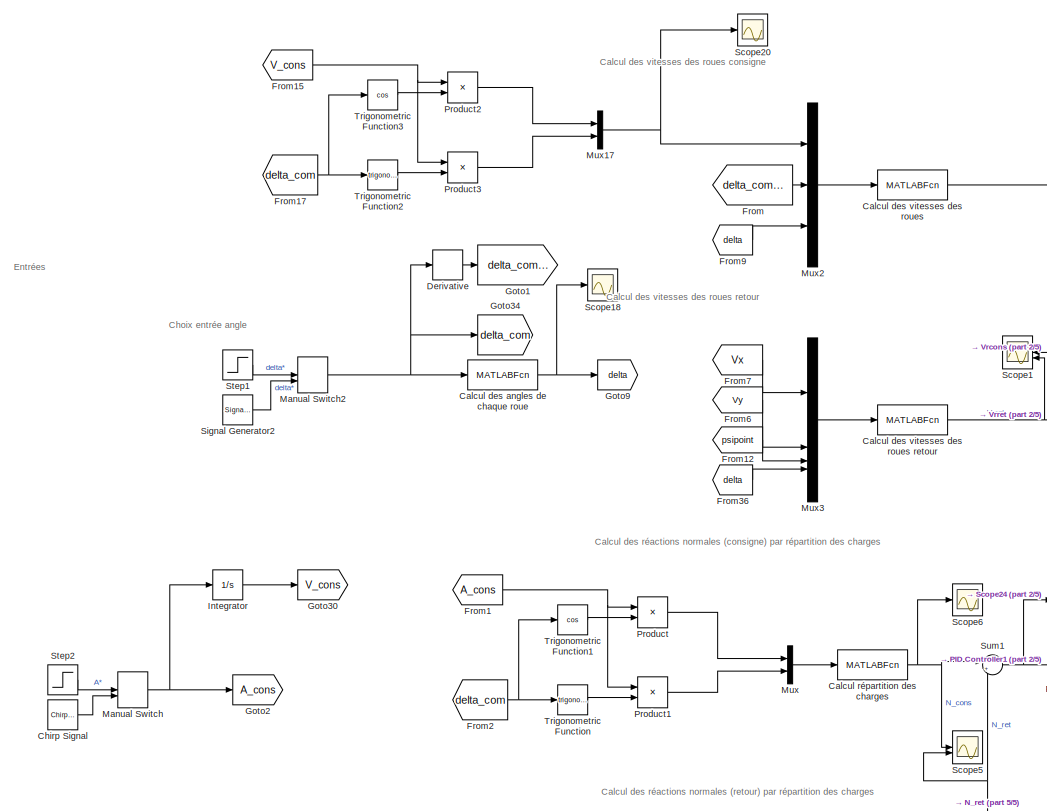
[diagram: root canvas - part 1/5, top left region]
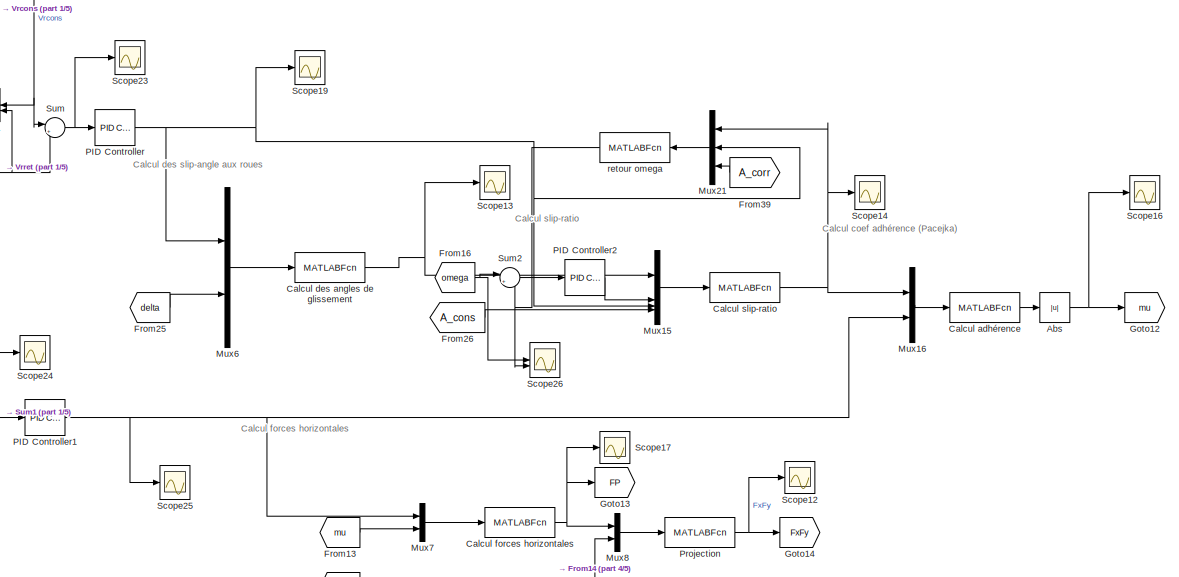
[diagram: root canvas - part 2/5, central region]
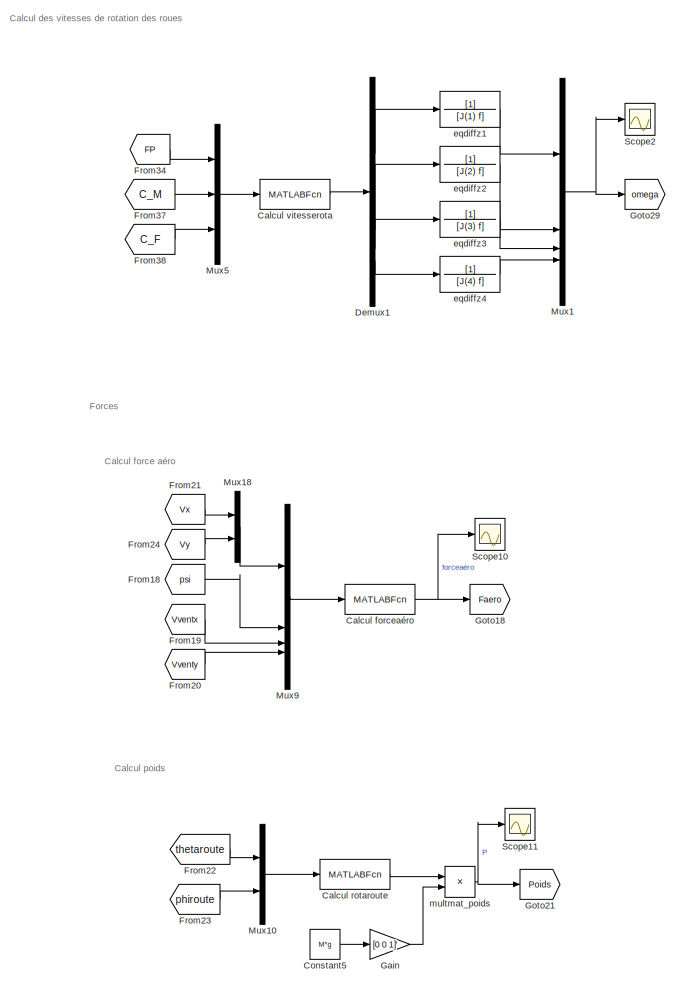
[diagram: root canvas - part 3/5, middle right region]
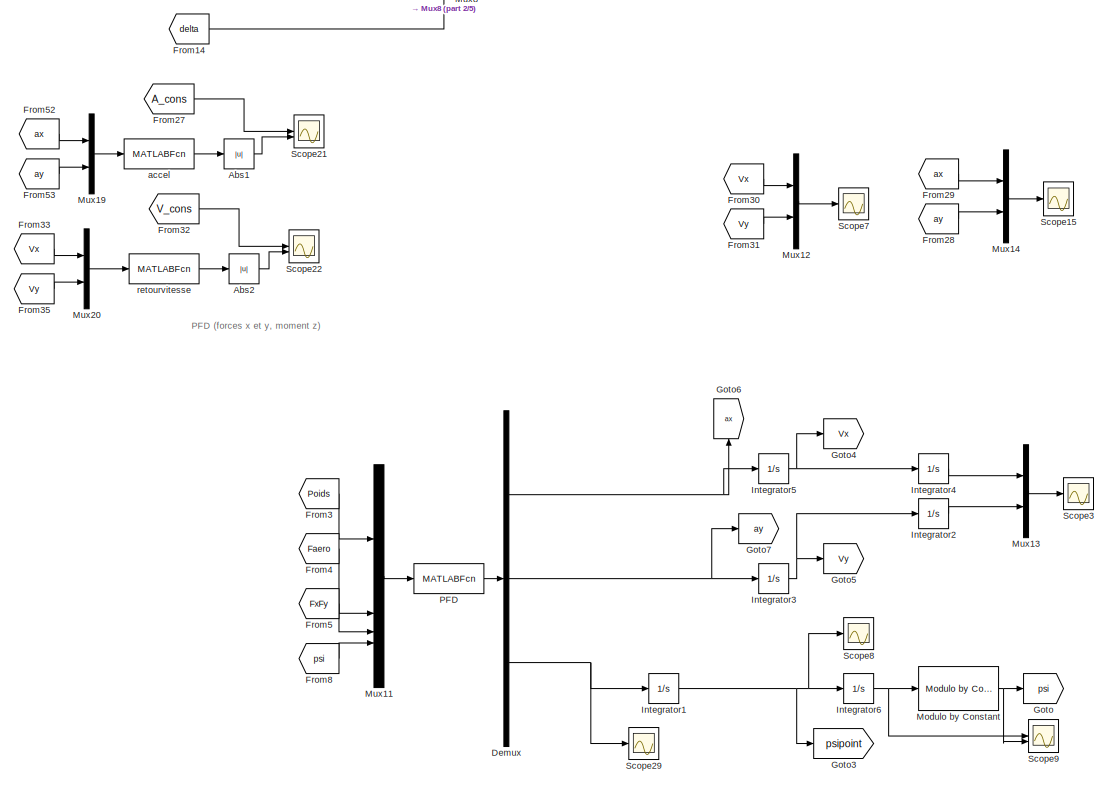
[diagram: root canvas - part 4/5, bottom center region]
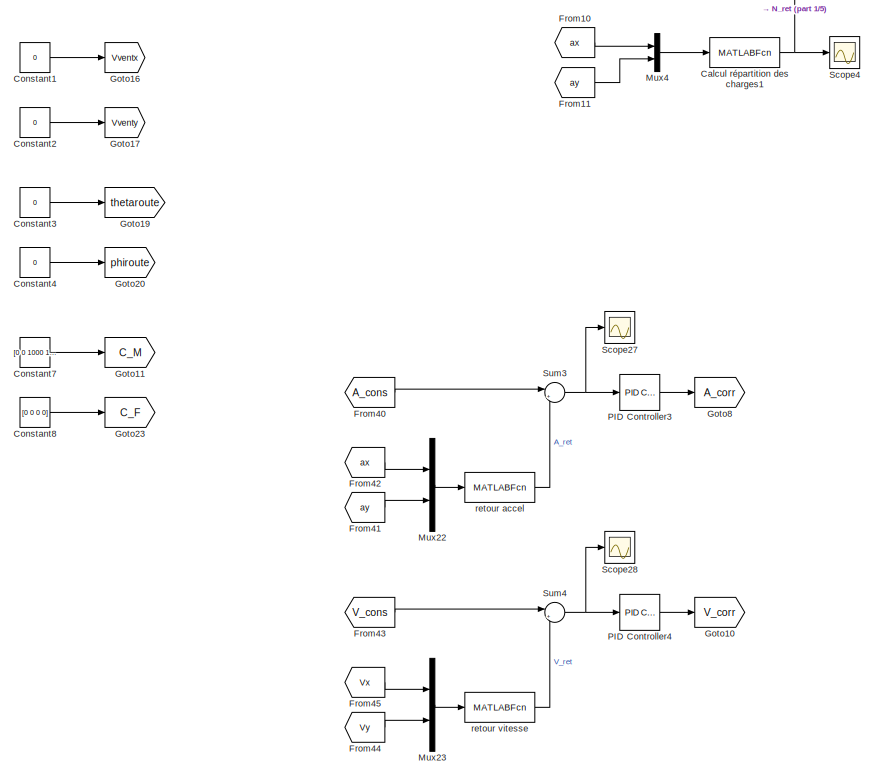
[diagram: root canvas - part 5/5, bottom left region]
MODEL slx_dfa112f104d4
KIND model
CONFIG AbsTol = auto
CONFIG EnableMultiTasking = off
CONFIG FixedStep = auto
CONFIG MaxStep = auto
CONFIG MinStep = auto
CONFIG RelTol = 1e-6
CONFIG SampleTimeConstraint = Unconstrained
CONFIG SolverName = VariableStepAuto
CONFIG StartTime = 0.0
CONFIG StopTime = 120
BLOCK [Abs] Abs
  Commented = through
  SaturateOnIntegerOverflow = off
BLOCK [Abs] Abs1
  SaturateOnIntegerOverflow = off
BLOCK [Abs] Abs2
  SaturateOnIntegerOverflow = off
BLOCK [MATLABFcn] Calcul adhérence
  MATLABFcn = calcul_adherence(u(1),u(2),u(3),u(4),u(5),u(6),u(7),u(8),Cte_1,Cte_2,Cte_3,Cte_4,u(9),u(10),u(11),u(12))
  OutputDimensions = 4*2
BLOCK [MATLABFcn] Calcul des angles de chaque roue
  MATLABFcn = calcul_delta(u,L,d_f)
  OutputDimensions = 4
BLOCK [MATLABFcn] Calcul des angles de glissement
  MATLABFcn = calcul_slipangle(u(1),u(2),u(3),u(4),u(5),u(6),u(7),u(8),u(9),u(10),u(11),u(12))
  OutputDimensions = 4
BLOCK [MATLABFcn] Calcul des vitesses des roues
  MATLABFcn = calcul_vitessesroues(u(1),u(2),u(3),u(4),u(5),u(6),u(7),d_f,d_r,l_f,l_r)
  OutputDimensions = 8
BLOCK [MATLABFcn] Calcul des vitesses des roues retour
  MATLABFcn = calcul_vitessesroues(u(1),u(2),u(3),u(4),u(5),u(6),u(7),d_f,d_r,l_f,l_r)
  OutputDimensions = 8
BLOCK [MATLABFcn] Calcul forceaéro
  MATLABFcn = calcul_forceaero(u(1),u(2),u(3),u(4),u(5),C_x,A_L,A_S,rho)
  OutputDimensions = 2
BLOCK [MATLABFcn] Calcul forces horizontales
  MATLABFcn = calcul_forces(u(1),u(2),u(3),u(4),u(5),u(6),u(7),u(8),u(9),u(10),u(11),u(12))
  OutputDimensions = 4*2
BLOCK [MATLABFcn] Calcul rotaroute
  MATLABFcn = calcul_rotaroute(u(1),u(2))
  Output1D = off
  OutputDimensions = [3 3]
BLOCK [MATLABFcn] Calcul répartition des charges
  MATLABFcn = calcul_N(u(1),u(2),M,L,l_r,h,g)
  OutputDimensions = 4
BLOCK [MATLABFcn] Calcul répartition des charges1
  MATLABFcn = calcul_N(u(1),u(2),M,L,l_r,h,g)
  OutputDimensions = 4
BLOCK [MATLABFcn] Calcul slip-ratio
  MATLABFcn = calcul_lambda(u(1),u(2),u(3),u(4),R(1),R(2),R(3),R(4),u(5),u(6),u(7),u(8),u(9),u(11),u(13),u(15),u(17))
  OutputDimensions = 4*2
BLOCK [MATLABFcn] Calcul vitesserota
  MATLABFcn = calcul_omega(u(1),u(2),u(3),u(4),u(5),u(6),u(7),u(8),u(9),u(10),u(11),u(12),u(13),u(14),u(15),u(16),R(1),R(2),R(3),R(4),J(1),J(2),J(3),J(4))
  OutputDimensions = 4
BLOCK [Reference] Chirp Signal  REF=simulink/Sources/Chirp Signal
  SourceBlock = simulink/Sources/Chirp Signal
  SourceType = chirp
BLOCK [Constant] Constant1
  Value = 0
BLOCK [Constant] Constant2
  Value = 0
BLOCK [Constant] Constant3
  Value = 0
BLOCK [Constant] Constant4
  Value = 0
BLOCK [Constant] Constant5
  Value = M*g
  VectorParams1D = off
BLOCK [Constant] Constant7
  Value = [0 0 1000 1000]
BLOCK [Constant] Constant8
  Value = [0 0 0 0]
BLOCK [Demux] Demux
  Outputs = 3
BLOCK [Demux] Demux1
BLOCK [Derivative] Derivative
BLOCK [From] From
  GotoTag = delta_compoint
BLOCK [From] From1
  GotoTag = A_cons
BLOCK [From] From10
  GotoTag = ax
BLOCK [From] From11
  GotoTag = ay
BLOCK [From] From12
  GotoTag = psipoint
BLOCK [From] From13
  GotoTag = mu
BLOCK [From] From14
  GotoTag = delta
BLOCK [From] From15
  GotoTag = V_cons
BLOCK [From] From16
  GotoTag = omega
BLOCK [From] From17
  GotoTag = delta_com
BLOCK [From] From18
  GotoTag = psi
BLOCK [From] From19
  GotoTag = Vventx
BLOCK [From] From2
  GotoTag = delta_com
BLOCK [From] From20
  GotoTag = Vventy
BLOCK [From] From21
  GotoTag = Vx
BLOCK [From] From22
  GotoTag = thetaroute
BLOCK [From] From23
  GotoTag = phiroute
BLOCK [From] From24
  GotoTag = Vy
BLOCK [From] From25
  GotoTag = delta
BLOCK [From] From26
  GotoTag = A_cons
BLOCK [From] From27
  GotoTag = A_cons
BLOCK [From] From28
  GotoTag = ay
BLOCK [From] From29
  GotoTag = ax
BLOCK [From] From3
  GotoTag = Poids
BLOCK [From] From30
  GotoTag = Vx
BLOCK [From] From31
  GotoTag = Vy
BLOCK [From] From32
  GotoTag = V_cons
BLOCK [From] From33
  GotoTag = Vx
BLOCK [From] From34
  GotoTag = FP
BLOCK [From] From35
  GotoTag = Vy
BLOCK [From] From36
  GotoTag = delta
BLOCK [From] From37
  GotoTag = C_M
BLOCK [From] From38
  GotoTag = C_F
BLOCK [From] From39
  Commented = on
  GotoTag = A_corr
  NameLocation = top
BLOCK [From] From4
  GotoTag = Faero
BLOCK [From] From40
  GotoTag = A_cons
BLOCK [From] From41
  GotoTag = ay
BLOCK [From] From42
  GotoTag = ax
BLOCK [From] From43
  GotoTag = V_cons
BLOCK [From] From44
  GotoTag = Vy
BLOCK [From] From45
  GotoTag = Vx
BLOCK [From] From5
  GotoTag = FxFy
BLOCK [From] From52
  GotoTag = ax
BLOCK [From] From53
  GotoTag = ay
BLOCK [From] From6
  GotoTag = Vy
BLOCK [From] From7
  GotoTag = Vx
BLOCK [From] From8
  GotoTag = psi
BLOCK [From] From9
  GotoTag = delta
BLOCK [Gain] Gain
  Gain = [0 0 1]'
BLOCK [Goto] Goto
  GotoTag = psi
BLOCK [Goto] Goto1
  GotoTag = delta_compoint
BLOCK [Goto] Goto10
  GotoTag = V_corr
BLOCK [Goto] Goto11
  GotoTag = C_M
BLOCK [Goto] Goto12
  GotoTag = mu
BLOCK [Goto] Goto13
  GotoTag = FP
BLOCK [Goto] Goto14
  GotoTag = FxFy
BLOCK [Goto] Goto16
  GotoTag = Vventx
BLOCK [Goto] Goto17
  GotoTag = Vventy
BLOCK [Goto] Goto18
  GotoTag = Faero
BLOCK [Goto] Goto19
  GotoTag = thetaroute
BLOCK [Goto] Goto2
  GotoTag = A_cons
BLOCK [Goto] Goto20
  GotoTag = phiroute
BLOCK [Goto] Goto21
  GotoTag = Poids
BLOCK [Goto] Goto23
  GotoTag = C_F
BLOCK [Goto] Goto29
  GotoTag = omega
BLOCK [Goto] Goto3
  GotoTag = psipoint
BLOCK [Goto] Goto30
  GotoTag = V_cons
BLOCK [Goto] Goto34
  GotoTag = delta_com
BLOCK [Goto] Goto4
  GotoTag = Vx
  NameLocation = top
BLOCK [Goto] Goto5
  GotoTag = Vy
  NameLocation = top
BLOCK [Goto] Goto6
  GotoTag = ax
  NameLocation = right
BLOCK [Goto] Goto7
  GotoTag = ay
BLOCK [Goto] Goto8
  GotoTag = A_corr
BLOCK [Goto] Goto9
  GotoTag = delta
BLOCK [Integrator] Integrator
BLOCK [Integrator] Integrator1
BLOCK [Integrator] Integrator2
BLOCK [Integrator] Integrator3
BLOCK [Integrator] Integrator4
BLOCK [Integrator] Integrator5
BLOCK [Integrator] Integrator6
BLOCK [ManualSwitch] Manual Switch
BLOCK [ManualSwitch] Manual Switch2
BLOCK [Reference] Modulo by Constant  REF=embmathops/Modulo by Constant
  LibrarySourceBlock = embeddedMathLib/Modulo by Constant
  SourceBlock = embmathops/Modulo by Constant
  SourceType = fixed.system.ModByConstant
BLOCK [Mux] Mux
  DisplayOption = bar
  Inputs = 2
BLOCK [Mux] Mux1
  DisplayOption = bar
BLOCK [Mux] Mux10
  DisplayOption = bar
  Inputs = 2
BLOCK [Mux] Mux11
  DisplayOption = bar
BLOCK [Mux] Mux12
  DisplayOption = bar
  Inputs = 2
BLOCK [Mux] Mux13
  DisplayOption = bar
  Inputs = 2
BLOCK [Mux] Mux14
  DisplayOption = bar
  Inputs = 2
BLOCK [Mux] Mux15
  DisplayOption = bar
BLOCK [Mux] Mux16
  DisplayOption = bar
  Inputs = 2
BLOCK [Mux] Mux17
  DisplayOption = bar
  Inputs = 2
BLOCK [Mux] Mux18
  DisplayOption = bar
  Inputs = 2
BLOCK [Mux] Mux19
  DisplayOption = bar
  Inputs = 2
BLOCK [Mux] Mux2
  DisplayOption = bar
  Inputs = 3
BLOCK [Mux] Mux20
  DisplayOption = bar
  Inputs = 2
BLOCK [Mux] Mux21
  Commented = on
  DisplayOption = bar
  Inputs = 3
  NameLocation = top
BLOCK [Mux] Mux22
  DisplayOption = bar
  Inputs = 2
BLOCK [Mux] Mux23
  DisplayOption = bar
  Inputs = 2
BLOCK [Mux] Mux3
  DisplayOption = bar
BLOCK [Mux] Mux4
  DisplayOption = bar
  Inputs = 2
BLOCK [Mux] Mux5
  DisplayOption = bar
  Inputs = 3
BLOCK [Mux] Mux6
  DisplayOption = bar
  Inputs = 2
BLOCK [Mux] Mux7
  DisplayOption = bar
  Inputs = 2
BLOCK [Mux] Mux8
  DisplayOption = bar
  Inputs = 2
BLOCK [Mux] Mux9
  DisplayOption = bar
BLOCK [MATLABFcn] PFD
  MATLABFcn = eqpfd(u(1),u(2),u(4),u(5),u(6),u(7),u(8),u(9),u(10),u(11),u(12),u(13),u(14),d_f,d_r,l_f,l_r,M,Iz)
  OutputDimensions = 3
BLOCK [Reference] PID Controller  REF=slpidlib/PID Controller
  LibrarySourceBlock = simulink/Continuous/PID Controller
  SourceBlock = slpidlib/PID Controller
  SourceType = PID 1dof
BLOCK [Reference] PID Controller1  REF=slpidlib/PID Controller
  LibrarySourceBlock = simulink/Continuous/PID Controller
  SourceBlock = slpidlib/PID Controller
  SourceType = PID 1dof
BLOCK [Reference] PID Controller2  REF=slpidlib/PID Controller
  Commented = through
  LibrarySourceBlock = simulink/Continuous/PID Controller
  SourceBlock = slpidlib/PID Controller
  SourceType = PID 1dof
BLOCK [Reference] PID Controller3  REF=slpidlib/PID Controller
  LibrarySourceBlock = simulink/Continuous/PID Controller
  SourceBlock = slpidlib/PID Controller
  SourceType = PID 1dof
BLOCK [Reference] PID Controller4  REF=slpidlib/PID Controller
  LibrarySourceBlock = simulink/Continuous/PID Controller
  SourceBlock = slpidlib/PID Controller
  SourceType = PID 1dof
BLOCK [Product] Product
BLOCK [Product] Product1
BLOCK [Product] Product2
BLOCK [Product] Product3
BLOCK [MATLABFcn] Projection
  MATLABFcn = projection(u(1),u(2),u(3),u(4),u(5),u(6),u(7),u(8),u(9),u(10),u(11),u(12))
  OutputDimensions = 8
BLOCK [Scope] Scope1
  Floating = off
  NameLocation = top
  NumInputPorts = 2
  ScopeSpecificationString = Simulink.scopes.TimeScopeBlockCfg('CurrentConfiguration', extmgr.ConfigurationSet(extmgr.Configuration('Core','General UI',true),extmgr.Configuration('Core','Source UI',true),extmgr.Configuration('Sources','WiredSimulink',true,'DataLoggingVariableName','ScopeData3'),extmgr.Configuration('Visuals','Time Domain',true,'SerializedDisplays',{struct('MinYLimReal','-69.83766','MaxYLimReal','141.08432','Y...<+2070ch>
BLOCK [Scope] Scope10
  Floating = off
  NumInputPorts = 1
  ScopeSpecificationString = Simulink.scopes.TimeScopeBlockCfg('CurrentConfiguration', extmgr.ConfigurationSet(extmgr.Configuration('Core','General UI',true),extmgr.Configuration('Core','Source UI',true),extmgr.Configuration('Sources','WiredSimulink',true,'DataLoggingVariableName','ScopeData11'),extmgr.Configuration('Visuals','Time Domain',true,'SerializedDisplays',{struct('MinYLimReal','-0.00171','MaxYLimReal','0.00019','YLa...<+1613ch>
BLOCK [Scope] Scope11
  Floating = off
  NumInputPorts = 1
  ScopeSpecificationString = Simulink.scopes.TimeScopeBlockCfg('CurrentConfiguration', extmgr.ConfigurationSet(extmgr.Configuration('Core','General UI',true),extmgr.Configuration('Core','Source UI',true),extmgr.Configuration('Sources','WiredSimulink',true,'DataLoggingVariableName','ScopeData12'),extmgr.Configuration('Visuals','Time Domain',true,'SerializedDisplays',{struct('MinYLimReal','-490.5','MaxYLimReal','4414.5','YLabel...<+1601ch>
BLOCK [Scope] Scope12
  Floating = off
  NumInputPorts = 1
  ScopeSpecificationString = Simulink.scopes.TimeScopeBlockCfg('CurrentConfiguration', extmgr.ConfigurationSet(extmgr.Configuration('Core','General UI',true),extmgr.Configuration('Core','Source UI',true),extmgr.Configuration('Sources','WiredSimulink',true,'DataLoggingVariableName','ScopeData13'),extmgr.Configuration('Visuals','Time Domain',true,'SerializedDisplays',{struct('MinYLimReal','-134939.67535','MaxYLimReal','125406.9...<+1808ch>
BLOCK [Scope] Scope13
  Floating = off
  NumInputPorts = 1
  ScopeSpecificationString = Simulink.scopes.TimeScopeBlockCfg('CurrentConfiguration', extmgr.ConfigurationSet(extmgr.Configuration('Core','General UI',true),extmgr.Configuration('Core','Source UI',true),extmgr.Configuration('Sources','WiredSimulink',true,'DataLoggingVariableName','ScopeData14'),extmgr.Configuration('Visuals','Time Domain',true,'SerializedDisplays',{struct('MinYLimReal','-2.43807','MaxYLimReal','2.3304','YLab...<+1750ch>
BLOCK [Scope] Scope14
  Floating = off
  NumInputPorts = 1
  ScopeSpecificationString = Simulink.scopes.TimeScopeBlockCfg('CurrentConfiguration', extmgr.ConfigurationSet(extmgr.Configuration('Core','General UI',true),extmgr.Configuration('Core','Source UI',true),extmgr.Configuration('Sources','WiredSimulink',true,'DataLoggingVariableName','ScopeData16'),extmgr.Configuration('Visuals','Time Domain',true,'SerializedDisplays',{struct('MinYLimReal','-3.68113','MaxYLimReal','2.95958','YLa...<+1880ch>
BLOCK [Scope] Scope15
  Floating = off
  NumInputPorts = 1
  ScopeSpecificationString = Simulink.scopes.TimeScopeBlockCfg('CurrentConfiguration', extmgr.ConfigurationSet(extmgr.Configuration('Core','General UI',true),extmgr.Configuration('Core','Source UI',true),extmgr.Configuration('Sources','WiredSimulink',true,'DataLoggingVariableName','ScopeData4'),extmgr.Configuration('Visuals','Time Domain',true,'SerializedDisplays',{struct('MinYLimReal','-1.32103','MaxYLimReal','1.37016','YLab...<+1629ch>
BLOCK [Scope] Scope16
  Floating = off
  NumInputPorts = 1
  ScopeSpecificationString = Simulink.scopes.TimeScopeBlockCfg('CurrentConfiguration', extmgr.ConfigurationSet(extmgr.Configuration('Core','General UI',true),extmgr.Configuration('Core','Source UI',true),extmgr.Configuration('Sources','WiredSimulink',true,'DataLoggingVariableName','ScopeData17'),extmgr.Configuration('Visuals','Time Domain',true,'SerializedDisplays',{struct('MinYLimReal','-0.125','MaxYLimReal','1.125','YLabelR...<+1725ch>
BLOCK [Scope] Scope17
  Floating = off
  NumInputPorts = 1
  ScopeSpecificationString = Simulink.scopes.TimeScopeBlockCfg('CurrentConfiguration', extmgr.ConfigurationSet(extmgr.Configuration('Core','General UI',true),extmgr.Configuration('Core','Source UI',true),extmgr.Configuration('Sources','WiredSimulink',true,'DataLoggingVariableName','ScopeData15'),extmgr.Configuration('Visuals','Time Domain',true,'SerializedDisplays',{struct('MinYLimReal','-1618.16348','MaxYLimReal','1754.87954...<+1995ch>
BLOCK [Scope] Scope18
  Floating = off
  NumInputPorts = 1
  ScopeSpecificationString = Simulink.scopes.TimeScopeBlockCfg('CurrentConfiguration', extmgr.ConfigurationSet(extmgr.Configuration('Core','General UI',true),extmgr.Configuration('Core','Source UI',true),extmgr.Configuration('Sources','WiredSimulink',true,'DataLoggingVariableName','ScopeData1'),extmgr.Configuration('Visuals','Time Domain',true,'SerializedDisplays',{struct('MinYLimReal','-1.00000','MaxYLimReal','1.00000','YLab...<+1728ch>
BLOCK [Scope] Scope19
  Floating = off
  NumInputPorts = 1
  ScopeSpecificationString = Simulink.scopes.TimeScopeBlockCfg('CurrentConfiguration', extmgr.ConfigurationSet(extmgr.Configuration('Core','General UI',true),extmgr.Configuration('Core','Source UI',true),extmgr.Configuration('Sources','WiredSimulink',true,'DataLoggingVariableName','ScopeData18'),extmgr.Configuration('Visuals','Time Domain',true,'SerializedDisplays',{struct('MinYLimReal','-410330.41857','MaxYLimReal','541584.8...<+1890ch>
BLOCK [Scope] Scope2
  Floating = off
  NumInputPorts = 1
  ScopeSpecificationString = Simulink.scopes.TimeScopeBlockCfg('CurrentConfiguration', extmgr.ConfigurationSet(extmgr.Configuration('Core','General UI',true),extmgr.Configuration('Core','Source UI',true),extmgr.Configuration('Sources','WiredSimulink',true),extmgr.Configuration('Visuals','Time Domain',true,'SerializedDisplays',{struct('MinYLimReal','-8567.43819','MaxYLimReal','18535.72607','YLabelReal','','MinYLimMag','  0.000...<+1638ch>
BLOCK [Scope] Scope20
  Floating = off
  NumInputPorts = 1
  ScopeSpecificationString = Simulink.scopes.TimeScopeBlockCfg('CurrentConfiguration', extmgr.ConfigurationSet(extmgr.Configuration('Core','General UI',true),extmgr.Configuration('Core','Source UI',true),extmgr.Configuration('Sources','WiredSimulink',true,'DataLoggingVariableName','ScopeData19'),extmgr.Configuration('Visuals','Time Domain',true,'SerializedDisplays',{struct('MinYLimReal','-7.49928','MaxYLimReal','67.49352','YL...<+1607ch>
BLOCK [Scope] Scope21
  Floating = off
  NumInputPorts = 2
  ScopeSpecificationString = Simulink.scopes.TimeScopeBlockCfg('CurrentConfiguration', extmgr.ConfigurationSet(extmgr.Configuration('Core','General UI',true),extmgr.Configuration('Core','Source UI',true),extmgr.Configuration('Sources','WiredSimulink',true,'DataLoggingVariableName','ScopeData20'),extmgr.Configuration('Visuals','Time Domain',true,'SerializedDisplays',{struct('MinYLimReal','-0.45954','MaxYLimReal','4.13582','YLa...<+1631ch>
BLOCK [Scope] Scope22
  Floating = off
  NumInputPorts = 2
  ScopeSpecificationString = Simulink.scopes.TimeScopeBlockCfg('CurrentConfiguration', extmgr.ConfigurationSet(extmgr.Configuration('Core','General UI',true),extmgr.Configuration('Core','Source UI',true),extmgr.Configuration('Sources','WiredSimulink',true,'DataLoggingVariableName','ScopeData21'),extmgr.Configuration('Visuals','Time Domain',true,'SerializedDisplays',{struct('MinYLimReal','-96617.5233','MaxYLimReal','869557.709...<+1633ch>
BLOCK [Scope] Scope23
  Floating = off
  NumInputPorts = 1
  ScopeSpecificationString = Simulink.scopes.TimeScopeBlockCfg('CurrentConfiguration', extmgr.ConfigurationSet(extmgr.Configuration('Core','General UI',true),extmgr.Configuration('Core','Source UI',true),extmgr.Configuration('Sources','WiredSimulink',true,'DataLoggingVariableName','ScopeData22'),extmgr.Configuration('Visuals','Time Domain',true,'SerializedDisplays',{struct('MinYLimReal','-3769.39848','MaxYLimReal','4974.70283...<+1786ch>
BLOCK [Scope] Scope24
  Floating = off
  NumInputPorts = 1
  ScopeSpecificationString = Simulink.scopes.TimeScopeBlockCfg('CurrentConfiguration', extmgr.ConfigurationSet(extmgr.Configuration('Core','General UI',true),extmgr.Configuration('Core','Source UI',true),extmgr.Configuration('Sources','WiredSimulink',true,'DataLoggingVariableName','ScopeData23'),extmgr.Configuration('Visuals','Time Domain',true,'SerializedDisplays',{struct('MinYLimReal','-245.68275','MaxYLimReal','275.12221',...<+1723ch>
BLOCK [Scope] Scope25
  Floating = off
  NumInputPorts = 1
  ScopeSpecificationString = Simulink.scopes.TimeScopeBlockCfg('CurrentConfiguration', extmgr.ConfigurationSet(extmgr.Configuration('Core','General UI',true),extmgr.Configuration('Core','Source UI',true),extmgr.Configuration('Sources','WiredSimulink',true,'DataLoggingVariableName','ScopeData24'),extmgr.Configuration('Visuals','Time Domain',true,'SerializedDisplays',{struct('MinYLimReal','-2324.81377','MaxYLimReal','2349.77696...<+1802ch>
BLOCK [Scope] Scope26
  Floating = off
  NumInputPorts = 2
  ScopeSpecificationString = Simulink.scopes.TimeScopeBlockCfg('CurrentConfiguration', extmgr.ConfigurationSet(extmgr.Configuration('Core','General UI',true),extmgr.Configuration('Core','Source UI',true),extmgr.Configuration('Sources','WiredSimulink',true,'DataLoggingVariableName','ScopeData25'),extmgr.Configuration('Visuals','Time Domain',true,'SerializedDisplays',{struct('MinYLimReal','-7587.11734','MaxYLimReal','68284.0560...<+1786ch>
BLOCK [Scope] Scope27
  Floating = off
  NumInputPorts = 1
  ScopeSpecificationString = Simulink.scopes.TimeScopeBlockCfg('CurrentConfiguration', extmgr.ConfigurationSet(extmgr.Configuration('Core','General UI',true),extmgr.Configuration('Core','Source UI',true),extmgr.Configuration('Sources','WiredSimulink',true,'DataLoggingVariableName','ScopeData1'),extmgr.Configuration('Visuals','Time Domain',true,'SerializedDisplays',{struct('MinYLimReal','-3.13584','MaxYLimReal','1.45954','YLab...<+1614ch>
BLOCK [Scope] Scope28
  Floating = off
  NumInputPorts = 1
  ScopeSpecificationString = Simulink.scopes.TimeScopeBlockCfg('CurrentConfiguration', extmgr.ConfigurationSet(extmgr.Configuration('Core','General UI',true),extmgr.Configuration('Core','Source UI',true),extmgr.Configuration('Sources','WiredSimulink',true,'DataLoggingVariableName','ScopeData2'),extmgr.Configuration('Visuals','Time Domain',true,'SerializedDisplays',{struct('MinYLimReal','-3.10236','MaxYLimReal','14.13692','YLa...<+1618ch>
BLOCK [Scope] Scope29
  Floating = off
  NumInputPorts = 1
  ScopeSpecificationString = Simulink.scopes.TimeScopeBlockCfg('CurrentConfiguration', extmgr.ConfigurationSet(extmgr.Configuration('Core','General UI',true),extmgr.Configuration('Core','Source UI',true),extmgr.Configuration('Sources','WiredSimulink',true,'DataLoggingVariableName','ScopeData1'),extmgr.Configuration('Visuals','Time Domain',true,'SerializedDisplays',{struct('MinYLimReal','-7.9903','MaxYLimReal','0.78332','YLabe...<+1497ch>
BLOCK [Scope] Scope3
  Floating = off
  NumInputPorts = 1
  ScopeSpecificationString = Simulink.scopes.TimeScopeBlockCfg('CurrentConfiguration', extmgr.ConfigurationSet(extmgr.Configuration('Core','General UI',true),extmgr.Configuration('Core','Source UI',true),extmgr.Configuration('Sources','WiredSimulink',true,'DataLoggingVariableName','ScopeData5'),extmgr.Configuration('Visuals','Time Domain',true,'SerializedDisplays',{struct('MinYLimReal','-478.21276','MaxYLimReal','4303.91487',...<+1562ch>
BLOCK [Scope] Scope4
  Floating = off
  NumInputPorts = 1
  ScopeSpecificationString = Simulink.scopes.TimeScopeBlockCfg('CurrentConfiguration', extmgr.ConfigurationSet(extmgr.Configuration('Core','General UI',true),extmgr.Configuration('Core','Source UI',true),extmgr.Configuration('Sources','WiredSimulink',true,'DataLoggingVariableName','ScopeData9'),extmgr.Configuration('Visuals','Time Domain',true,'SerializedDisplays',{struct('MinYLimReal','763.64052','MaxYLimReal','1199.28108','...<+1665ch>
BLOCK [Scope] Scope5
  Floating = off
  NumInputPorts = 2
  ScopeSpecificationString = Simulink.scopes.TimeScopeBlockCfg('CurrentConfiguration', extmgr.ConfigurationSet(extmgr.Configuration('Core','General UI',true),extmgr.Configuration('Core','Source UI',true),extmgr.Configuration('Sources','WiredSimulink',true,'DataLoggingVariableName','ScopeData10'),extmgr.Configuration('Visuals','Time Domain',true,'SerializedDisplays',{struct('MinYLimReal','-106391501.80907','MaxYLimReal','10781...<+1819ch>
BLOCK [Scope] Scope6
  Floating = off
  NumInputPorts = 1
  ScopeSpecificationString = Simulink.scopes.TimeScopeBlockCfg('CurrentConfiguration', extmgr.ConfigurationSet(extmgr.Configuration('Core','General UI',true),extmgr.Configuration('Core','Source UI',true),extmgr.Configuration('Sources','WiredSimulink',true,'DataLoggingVariableName','ScopeData2'),extmgr.Configuration('Visuals','Time Domain',true,'SerializedDisplays',{struct('MinYLimReal','735.09483','MaxYLimReal','1226.90517','...<+1669ch>
BLOCK [Scope] Scope7
  Floating = off
  NumInputPorts = 1
  ScopeSpecificationString = Simulink.scopes.TimeScopeBlockCfg('CurrentConfiguration', extmgr.ConfigurationSet(extmgr.Configuration('Core','General UI',true),extmgr.Configuration('Core','Source UI',true),extmgr.Configuration('Sources','WiredSimulink',true,'DataLoggingVariableName','ScopeData6'),extmgr.Configuration('Visuals','Time Domain',true,'SerializedDisplays',{struct('MinYLimReal','-0.1118','MaxYLimReal','1.00616','YLabe...<+1612ch>
BLOCK [Scope] Scope8
  Floating = off
  NumInputPorts = 1
  ScopeSpecificationString = Simulink.scopes.TimeScopeBlockCfg('CurrentConfiguration', extmgr.ConfigurationSet(extmgr.Configuration('Core','General UI',true),extmgr.Configuration('Core','Source UI',true),extmgr.Configuration('Sources','WiredSimulink',true,'DataLoggingVariableName','ScopeData7'),extmgr.Configuration('Visuals','Time Domain',true,'SerializedDisplays',{struct('MinYLimReal','-112.17993','MaxYLimReal','12.46444','Y...<+1517ch>
BLOCK [Scope] Scope9
  Floating = off
  NumInputPorts = 2
  ScopeSpecificationString = Simulink.scopes.TimeScopeBlockCfg('CurrentConfiguration', extmgr.ConfigurationSet(extmgr.Configuration('Core','General UI',true),extmgr.Configuration('Core','Source UI',true),extmgr.Configuration('Sources','WiredSimulink',true,'DataLoggingVariableName','ScopeData8'),extmgr.Configuration('Visuals','Time Domain',true,'SerializedDisplays',{struct('MinYLimReal','-824.88541','MaxYLimReal','98.63525','Y...<+1563ch>
BLOCK [SignalGenerator] Signal Generator2
  Frequency = 0.01
  Units = rad/sec
BLOCK [Step] Step1
  After = 0
  SampleTime = 0
  Time = 0
BLOCK [Step] Step2
  SampleTime = 0
  Time = 0
BLOCK [Sum] Sum
  Inputs = |+-
BLOCK [Sum] Sum1
  Inputs = |+-
BLOCK [Sum] Sum2
  Inputs = |+-
BLOCK [Sum] Sum3
  Inputs = |+-
BLOCK [Sum] Sum4
  Inputs = |+-
BLOCK [Trigonometry] Trigonometric Function
BLOCK [Trigonometry] Trigonometric Function1
  Operator = cos
BLOCK [Trigonometry] Trigonometric Function2
BLOCK [Trigonometry] Trigonometric Function3
  Operator = cos
BLOCK [MATLABFcn] accel
  MATLABFcn = calcul_retourvitesse(u(1),u(2))
  OutputDimensions = 1
BLOCK [TransferFcn] eqdiffz1
  Denominator = [J(1) f]
BLOCK [TransferFcn] eqdiffz2
  Denominator = [J(2) f]
BLOCK [TransferFcn] eqdiffz3
  Denominator = [J(3) f]
BLOCK [TransferFcn] eqdiffz4
  Denominator = [J(4) f]
BLOCK [Product] multmat_poids
  Multiplication = Matrix(*)
BLOCK [MATLABFcn] retour accel
  MATLABFcn = calcul_retourvitesse(u(1),u(2))
  OutputDimensions = 1
BLOCK [MATLABFcn] retour omega
  Commented = on
  MATLABFcn = retourlambda(u(1),u(2),u(3),u(4),u(5),u(6),u(7),u(8),u(9),u(10),u(11),u(12),u(13),u(14),u(15),u(16),R(1),R(2),R(3),R(4),u(17))
  NameLocation = top
  OutputDimensions = 4
BLOCK [MATLABFcn] retour vitesse
  MATLABFcn = calcul_retourvitesse(u(1),u(2))
  OutputDimensions = 1
BLOCK [MATLABFcn] retourvitesse
  MATLABFcn = calcul_retourvitesse(u(1),u(2))
  OutputDimensions = 1
ANNOTATION (root): Calcul coef adhérence (Pacejka)
ANNOTATION (root): Calcul des réactions normales (consigne) par répartition des charges
ANNOTATION (root): Calcul des réactions normales (retour) par répartition des charges
ANNOTATION (root): Calcul des slip-angle aux roues
ANNOTATION (root): Calcul des vitesses de rotation des roues
ANNOTATION (root): Calcul des vitesses des roues consigne
ANNOTATION (root): Calcul des vitesses des roues retour
ANNOTATION (root): Calcul force aéro
ANNOTATION (root): Calcul forces horizontales
ANNOTATION (root): Calcul poids
ANNOTATION (root): Calcul slip-ratio
ANNOTATION (root): Choix entrée angle
ANNOTATION (root): Entrées
ANNOTATION (root): Forces
ANNOTATION (root): PFD (forces x et y, moment z)
LINE Abs1:1 -> Scope21:2
LINE Abs2:1 -> Scope22:2
NET Abs:1 -> Goto12:1, Scope16:1
LINE Calcul adhérence:1 -> Abs:1
NET Calcul des angles de chaque roue:1 -> Goto9:1, Scope18:1
NET Calcul des angles de glissement:1 -> Mux15:1, Scope13:1
NET Calcul des vitesses des roues retour:1 -> Scope1:2, Sum:2
NET Calcul des vitesses des roues:1 -> Scope1:1, Sum:1
NET Calcul forceaéro:1 -> Goto18:1, Scope10:1
NET Calcul forces horizontales:1 -> Goto13:1, Mux8:1, Scope17:1
LINE Calcul rotaroute:1 -> multmat_poids:1
NET Calcul répartition des charges1:1 -> Scope4:1, Scope5:2, Sum1:2
NET Calcul répartition des charges:1 -> Scope5:1, Scope6:1, Sum1:1
NET Calcul slip-ratio:1 -> Mux16:1, Mux21:1, Scope14:1
LINE Calcul vitesserota:1 -> Demux1:1
LINE Chirp Signal:1 -> Manual Switch:2
LINE Constant1:1 -> Goto16:1
LINE Constant2:1 -> Goto17:1
LINE Constant3:1 -> Goto19:1
LINE Constant4:1 -> Goto20:1
LINE Constant5:1 -> Gain:1
LINE Constant7:1 -> Goto11:1
LINE Constant8:1 -> Goto23:1
LINE Demux1:1 -> eqdiffz1:1
LINE Demux1:2 -> eqdiffz2:1
LINE Demux1:3 -> eqdiffz3:1
LINE Demux1:4 -> eqdiffz4:1
NET Demux:1 -> Goto6:1, Integrator5:1
NET Demux:2 -> Goto7:1, Integrator3:1
NET Demux:3 -> Integrator1:1, Scope29:1
LINE Derivative:1 -> Goto1:1
LINE From10:1 -> Mux4:1
LINE From11:1 -> Mux4:2
LINE From12:1 -> Mux3:3
LINE From13:1 -> Mux7:2
LINE From14:1 -> Mux8:2
NET From15:1 -> Product2:1, Product3:1
NET From16:1 -> Scope26:1, Sum2:1
NET From17:1 -> Trigonometric Function2:1, Trigonometric Function3:1
LINE From18:1 -> Mux9:2
LINE From19:1 -> Mux9:3
NET From1:1 -> Product1:1, Product:1
LINE From20:1 -> Mux9:4
LINE From21:1 -> Mux18:1
LINE From22:1 -> Mux10:1
LINE From23:1 -> Mux10:2
LINE From24:1 -> Mux18:2
LINE From25:1 -> Mux6:2
LINE From26:1 -> Mux15:4
LINE From27:1 -> Scope21:1
LINE From28:1 -> Mux14:2
LINE From29:1 -> Mux14:1
NET From2:1 -> Trigonometric Function1:1, Trigonometric Function:1
LINE From30:1 -> Mux12:1
LINE From31:1 -> Mux12:2
LINE From32:1 -> Scope22:1
LINE From33:1 -> Mux20:1
LINE From34:1 -> Mux5:1
LINE From35:1 -> Mux20:2
LINE From36:1 -> Mux3:4
LINE From37:1 -> Mux5:2
LINE From38:1 -> Mux5:3
LINE From39:1 -> Mux21:3
LINE From3:1 -> Mux11:1
LINE From40:1 -> Sum3:1
LINE From41:1 -> Mux22:2
LINE From42:1 -> Mux22:1
LINE From43:1 -> Sum4:1
LINE From44:1 -> Mux23:2
LINE From45:1 -> Mux23:1
LINE From4:1 -> Mux11:2
LINE From52:1 -> Mux19:1
LINE From53:1 -> Mux19:2
LINE From5:1 -> Mux11:3
LINE From6:1 -> Mux3:2
LINE From7:1 -> Mux3:1
LINE From8:1 -> Mux11:4
LINE From9:1 -> Mux2:3
LINE From:1 -> Mux2:2
LINE Gain:1 -> multmat_poids:2
NET Integrator1:1 -> Goto3:1, Integrator6:1, Scope8:1
LINE Integrator2:1 -> Mux13:2
NET Integrator3:1 -> Goto5:1, Integrator2:1
LINE Integrator4:1 -> Mux13:1
NET Integrator5:1 -> Goto4:1, Integrator4:1
NET Integrator6:1 -> Modulo by Constant:1, Scope9:1
LINE Integrator:1 -> Goto30:1
NET Manual Switch2:1 -> Calcul des angles de chaque roue:1, Derivative:1, Goto34:1
NET Manual Switch:1 -> Goto2:1, Integrator:1
NET Modulo by Constant:1 -> Goto:1, Scope9:2
LINE Mux10:1 -> Calcul rotaroute:1
LINE Mux11:1 -> PFD:1
LINE Mux12:1 -> Scope7:1
LINE Mux13:1 -> Scope3:1
LINE Mux14:1 -> Scope15:1
LINE Mux15:1 -> Calcul slip-ratio:1
LINE Mux16:1 -> Calcul adhérence:1
NET Mux17:1 -> Mux2:1, Scope20:1
LINE Mux18:1 -> Mux9:1
LINE Mux19:1 -> accel:1
NET Mux1:1 -> Goto29:1, Scope2:1
LINE Mux20:1 -> retourvitesse:1
LINE Mux21:1 -> retour omega:1
LINE Mux22:1 -> retour accel:1
LINE Mux23:1 -> retour vitesse:1
LINE Mux2:1 -> Calcul des vitesses des roues:1
LINE Mux3:1 -> Calcul des vitesses des roues retour:1
LINE Mux4:1 -> Calcul répartition des charges1:1
LINE Mux5:1 -> Calcul vitesserota:1
LINE Mux6:1 -> Calcul des angles de glissement:1
LINE Mux7:1 -> Calcul forces horizontales:1
LINE Mux8:1 -> Projection:1
LINE Mux9:1 -> Calcul forceaéro:1
LINE Mux:1 -> Calcul répartition des charges:1
LINE PFD:1 -> Demux:1
NET PID Controller1:1 -> Mux16:2, Mux7:1, Scope25:1
LINE PID Controller2:1 -> Mux15:2
LINE PID Controller3:1 -> Goto8:1
LINE PID Controller4:1 -> Goto10:1
NET PID Controller:1 -> Mux15:3, Mux21:2, Mux6:1, Scope19:1
LINE Product1:1 -> Mux:2
LINE Product2:1 -> Mux17:1
LINE Product3:1 -> Mux17:2
LINE Product:1 -> Mux:1
NET Projection:1 -> Goto14:1, Scope12:1
LINE Signal Generator2:1 -> Manual Switch2:2
LINE Step1:1 -> Manual Switch2:1
LINE Step2:1 -> Manual Switch:1
NET Sum1:1 -> PID Controller1:1, Scope24:1
LINE Sum2:1 -> PID Controller2:1
NET Sum3:1 -> PID Controller3:1, Scope27:1
NET Sum4:1 -> PID Controller4:1, Scope28:1
NET Sum:1 -> PID Controller:1, Scope23:1
LINE Trigonometric Function1:1 -> Product:2
LINE Trigonometric Function2:1 -> Product3:2
LINE Trigonometric Function3:1 -> Product2:2
LINE Trigonometric Function:1 -> Product1:2
LINE accel:1 -> Abs1:1
LINE eqdiffz1:1 -> Mux1:1
LINE eqdiffz2:1 -> Mux1:2
LINE eqdiffz3:1 -> Mux1:3
LINE eqdiffz4:1 -> Mux1:4
NET multmat_poids:1 -> Goto21:1, Scope11:1
LINE retour accel:1 -> Sum3:2
NET retour omega:1 -> Scope26:2, Sum2:2
LINE retour vitesse:1 -> Sum4:2
LINE retourvitesse:1 -> Abs2:1
note: NET lines group one-source signal fan-out (src -> all destinations, sorted); 1:1 wires keep LINE
